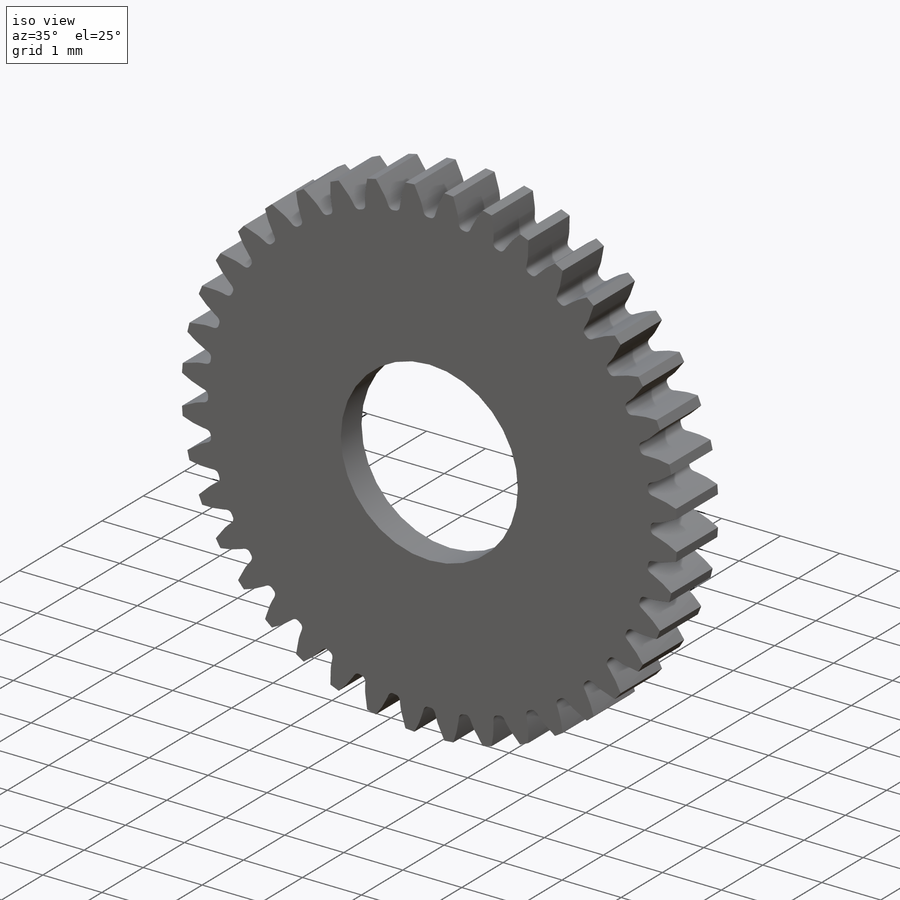
[diagram: iso view]
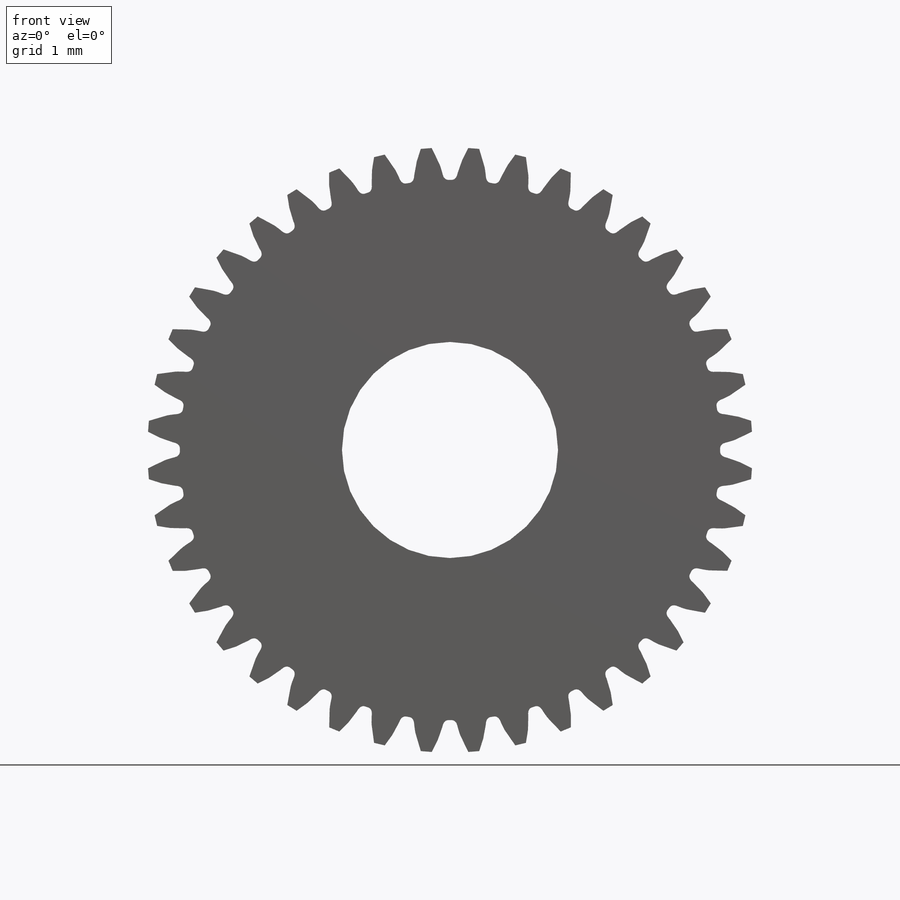
[diagram: front view]
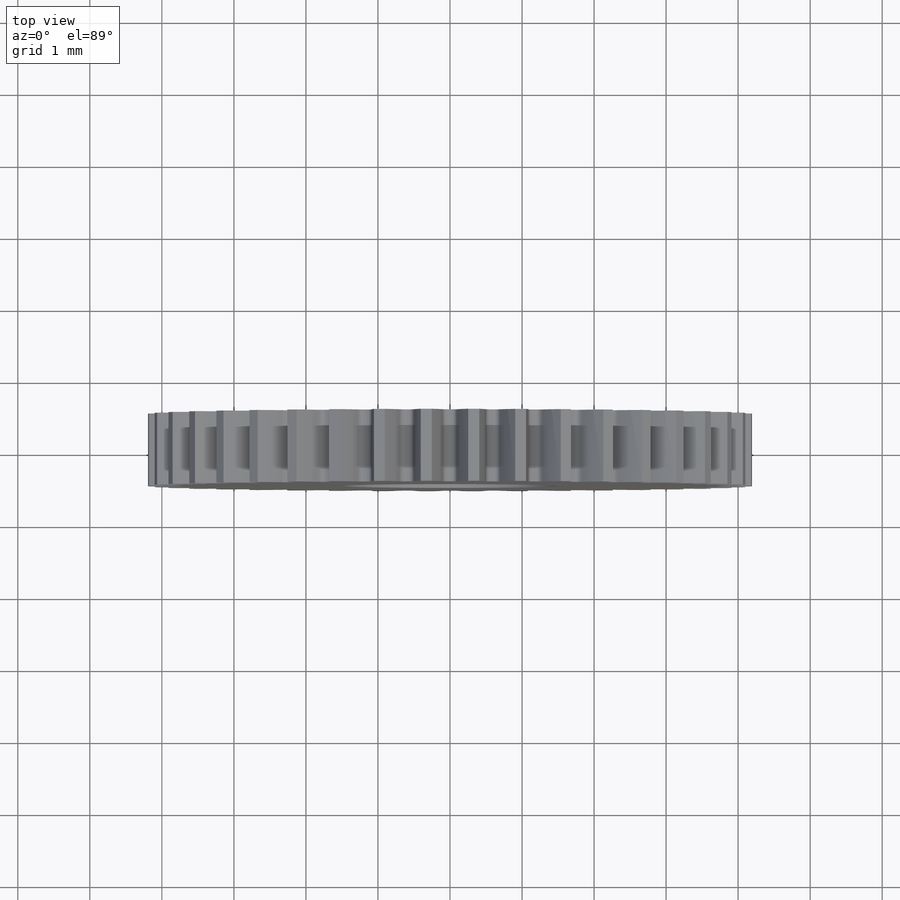
[diagram: top view]
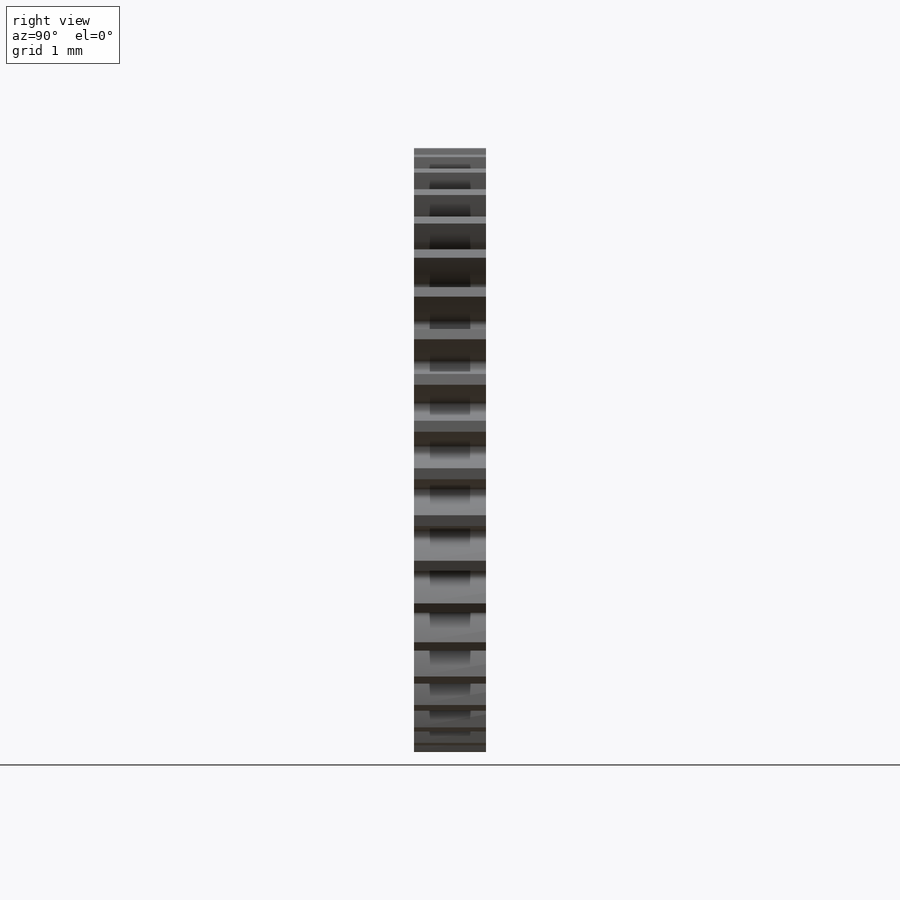
[diagram: right view]
SOLIDWORKS PART (.sldprt)
format: sldprt  version: not decoded by parser v0  size: 684,544 bytes
history: native  units: mm
features: sketch x5, plane x3, cut_extrude x3, material x1, revolve x1, pattern_circular x1 (+8 scaffold rows collapsed)
feature tree (22):
  scaffold x8  (default folders/planes/origin — collapsed)
  material  "Material <sin especificar>"
  plane  "Alzado"
  plane  "Planta"
  plane  "Vista lateral"
  sketch  "SketchRevolveEngranaje Grueso(8.3)"  dims[D1=1.0mm]
  revolve  "Engranaje Grueso(8.3)"  Angle=360deg
  sketch  "SketchToothEngranaje Grueso(8.3)"
  cut_extrude  "ToothExtrudeCutEngranaje Grueso(8.3)"  Depth=0.5mm
  pattern_circular  "PatternEngranaje Grueso(8.3)"  Count=40 Angle=9deg
  sketch  "AuxiliarySketchEngranaje Grueso(8.3)"  dims[PitchDiameter=8.0mm BaseDiameter=~7.517541mm FormDiameter=~7.666733mm MajorDiameter=8.4mm MinorDiameter=7.5mm]
  sketch  "Croquis5"  dims[D1=3.0mm]
  cut_extrude  "Cortar-Extruir2"  Depth=10mm
  sketch  "Croquis6"  dims[D1=5.5mm]
  cut_extrude  "Cortar-Extruir3"  Depth=0.5mm
decode coverage: 9 of 10 modeling features carry decoded parameters
note: ~ marks probable driven/reference dimensions
note: suppression state not decoded; provenance and decode notes live in map.json
